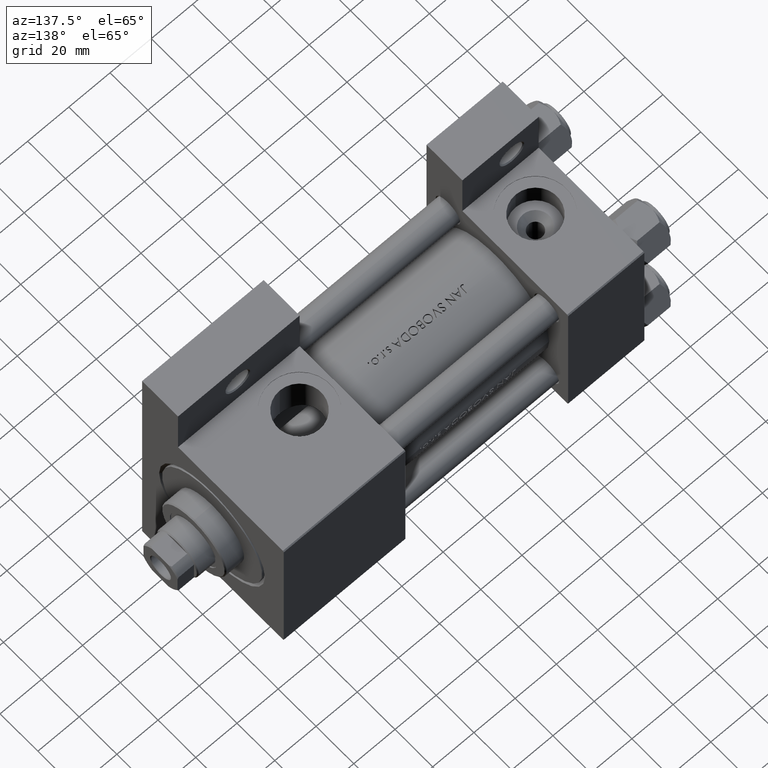
[diagram: clean part render]
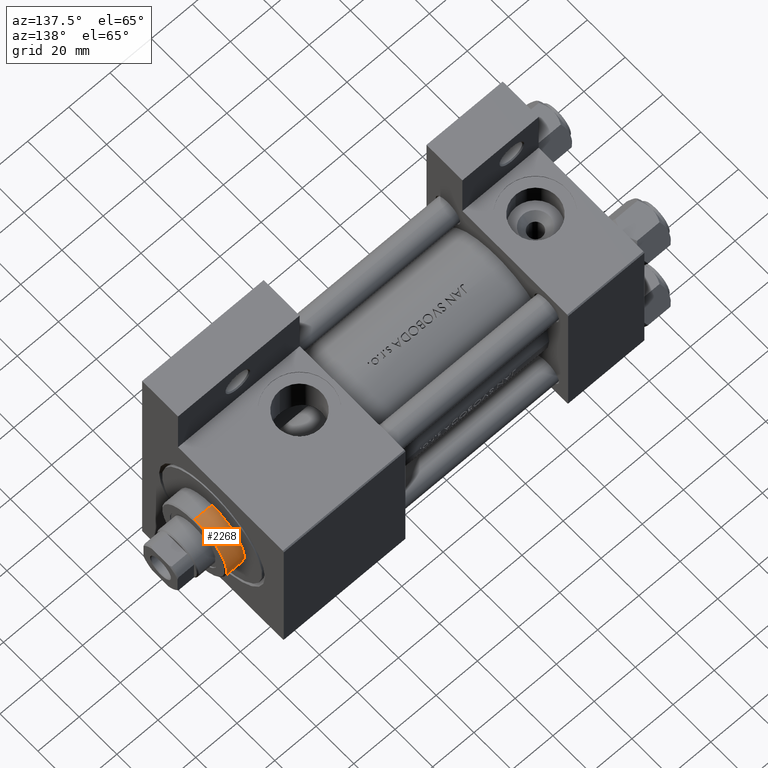
[diagram: same view with one face highlighted and labeled with its STEP entity id]
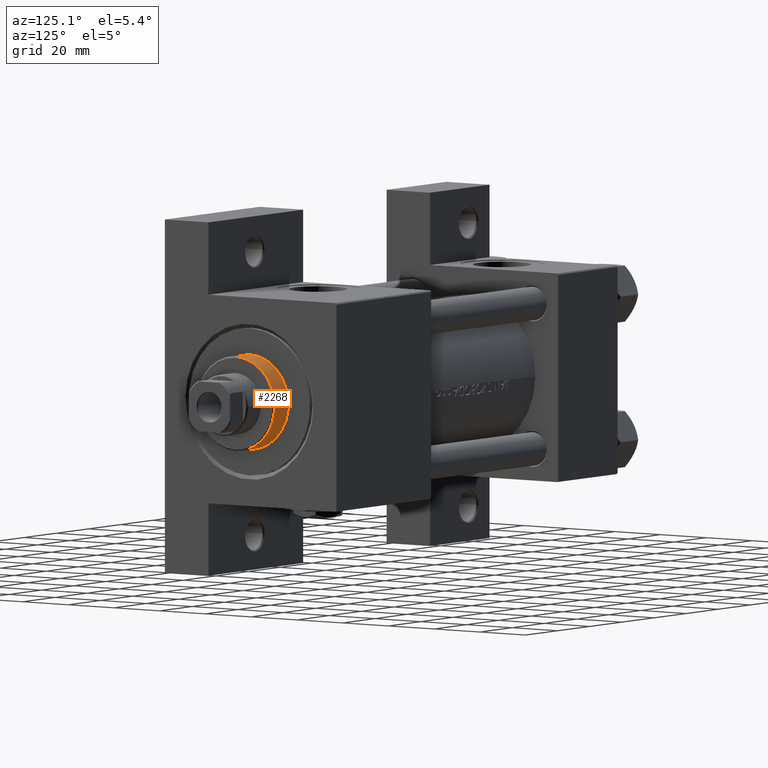
[diagram: same view with one face highlighted and labeled with its STEP entity id]
A machine part, auxiliary view. The second image highlights one B-rep face of the part: STEP entity #2268.
A second angle (auxiliary view) of the same face is appended — the face is thin or edge-on in the first view.
In plain terms, the highlighted cylindrical surface (partial cylindrical patch) has radius 17 mm, axis along (-1, -0, 0).
Its self-contained STEP definition (entity closure, byte-faithful):
#176 = VECTOR ( 'NONE', #19762, 1000.000000000000000 ) ;
#608 = AXIS2_PLACEMENT_3D ( 'NONE', #3707, #33356, #44799 ) ;
#2268 = ADVANCED_FACE ( 'NONE', ( #48279 ), #45293, .T. ) ;
#3707 = CARTESIAN_POINT ( 'NONE',  ( 0.000000000000000000, 0.000000000000000000, 37.69999999999999574 ) ) ;
#4571 = CARTESIAN_POINT ( 'NONE',  ( 0.000000000000000000, 0.000000000000000000, 37.19999999999999574 ) ) ;
#6813 = EDGE_LOOP ( 'NONE', ( #8317, #21766, #20476, #43187 ) ) ;
#8317 = ORIENTED_EDGE ( 'NONE', *, *, #48604, .T. ) ;
#9740 = VECTOR ( 'NONE', #45846, 1000.000000000000000 ) ;
#10850 = VERTEX_POINT ( 'NONE', #47830 ) ;
#11671 = EDGE_CURVE ( 'NONE', #33121, #46369, #43082, .T. ) ;
#13314 = CARTESIAN_POINT ( 'NONE',  ( -17.00000000000000000, 0.000000000000000000, 28.69999999999999929 ) ) ;
#13410 = EDGE_CURVE ( 'NONE', #47724, #46369, #42662, .T. ) ;
#19762 = DIRECTION ( 'NONE',  ( -0.000000000000000000, -0.000000000000000000, -1.000000000000000000 ) ) ;
#19782 = DIRECTION ( 'NONE',  ( 0.000000000000000000, 0.000000000000000000, -1.000000000000000000 ) ) ;
#20476 = ORIENTED_EDGE ( 'NONE', *, *, #11671, .T. ) ;
#21605 = AXIS2_PLACEMENT_3D ( 'NONE', #25561, #33525, #48698 ) ;
#21766 = ORIENTED_EDGE ( 'NONE', *, *, #36985, .T. ) ;
#23511 = DIRECTION ( 'NONE',  ( 1.000000000000000000, 0.000000000000000000, 0.000000000000000000 ) ) ;
#25561 = CARTESIAN_POINT ( 'NONE',  ( 0.000000000000000000, 0.000000000000000000, 28.69999999999999929 ) ) ;
#30419 = LINE ( 'NONE', #45596, #9740 ) ;
#31443 = CARTESIAN_POINT ( 'NONE',  ( -17.00000000000000000, 0.000000000000000000, 37.69999999999999574 ) ) ;
#31634 = CARTESIAN_POINT ( 'NONE',  ( -17.00000000000000000, 0.000000000000000000, 37.19999999999999574 ) ) ;
#33121 = VERTEX_POINT ( 'NONE', #39748 ) ;
#33356 = DIRECTION ( 'NONE',  ( -0.000000000000000000, -0.000000000000000000, -1.000000000000000000 ) ) ;
#33525 = DIRECTION ( 'NONE',  ( 0.000000000000000000, 0.000000000000000000, 1.000000000000000000 ) ) ;
#33752 = AXIS2_PLACEMENT_3D ( 'NONE', #4571, #19782, #23511 ) ;
#34538 = CIRCLE ( 'NONE', #33752, 17.00000000000000000 ) ;
#36985 = EDGE_CURVE ( 'NONE', #10850, #33121, #30419, .T. ) ;
#39748 = CARTESIAN_POINT ( 'NONE',  ( 17.00000000000000000, 2.081899558550500280E-15, 28.69999999999999929 ) ) ;
#42662 = LINE ( 'NONE', #31443, #176 ) ;
#43082 = CIRCLE ( 'NONE', #21605, 17.00000000000000000 ) ;
#43187 = ORIENTED_EDGE ( 'NONE', *, *, #13410, .F. ) ;
#44799 = DIRECTION ( 'NONE',  ( -1.000000000000000000, 0.000000000000000000, 0.000000000000000000 ) ) ;
#45293 = CYLINDRICAL_SURFACE ( 'NONE', #608, 17.00000000000000000 ) ;
#45596 = CARTESIAN_POINT ( 'NONE',  ( 17.00000000000000000, 2.081899558550500280E-15, 37.69999999999999574 ) ) ;
#45846 = DIRECTION ( 'NONE',  ( -0.000000000000000000, -0.000000000000000000, -1.000000000000000000 ) ) ;
#46369 = VERTEX_POINT ( 'NONE', #13314 ) ;
#47724 = VERTEX_POINT ( 'NONE', #31634 ) ;
#47830 = CARTESIAN_POINT ( 'NONE',  ( 17.00000000000000000, 2.081899558550500280E-15, 37.19999999999999574 ) ) ;
#48279 = FACE_OUTER_BOUND ( 'NONE', #6813, .T. ) ;
#48604 = EDGE_CURVE ( 'NONE', #47724, #10850, #34538, .T. ) ;
#48698 = DIRECTION ( 'NONE',  ( 1.000000000000000000, 0.000000000000000000, 0.000000000000000000 ) ) ;